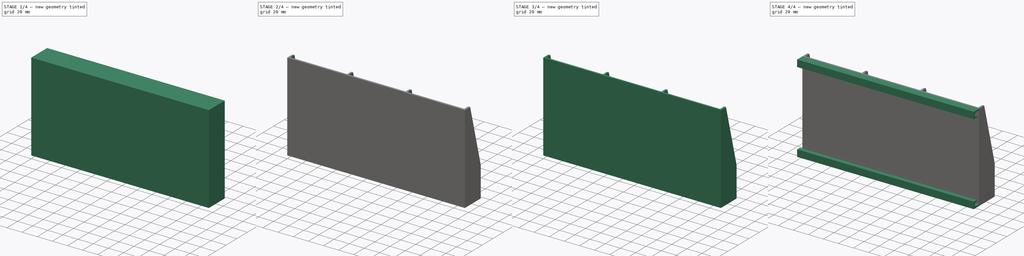
[diagram: build sequence overview — one tinted view per stage of 4, left to right]
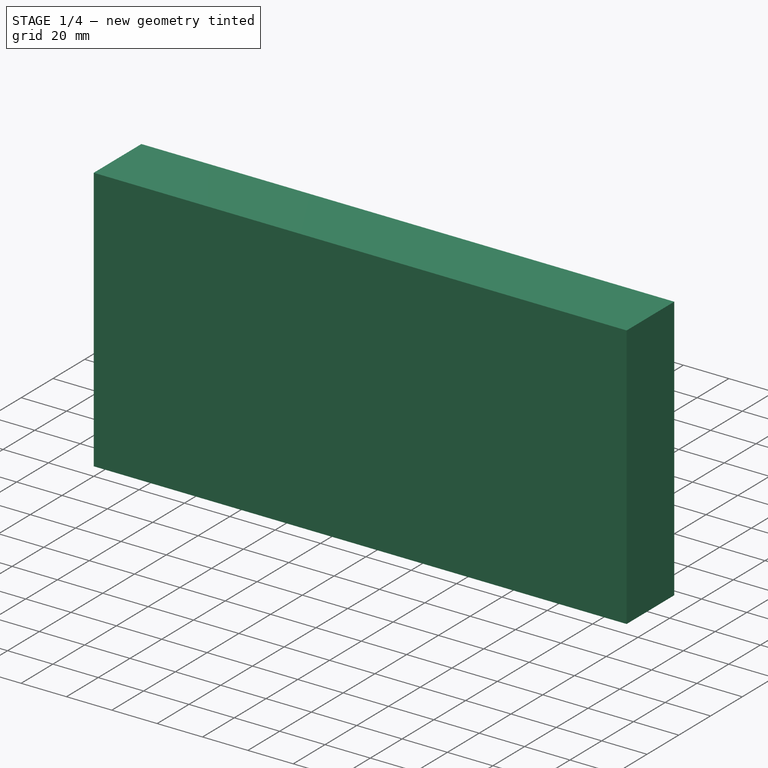
[diagram: stage 1 of 4 — iso view after this stage's code; geometry added in this stage tinted green]
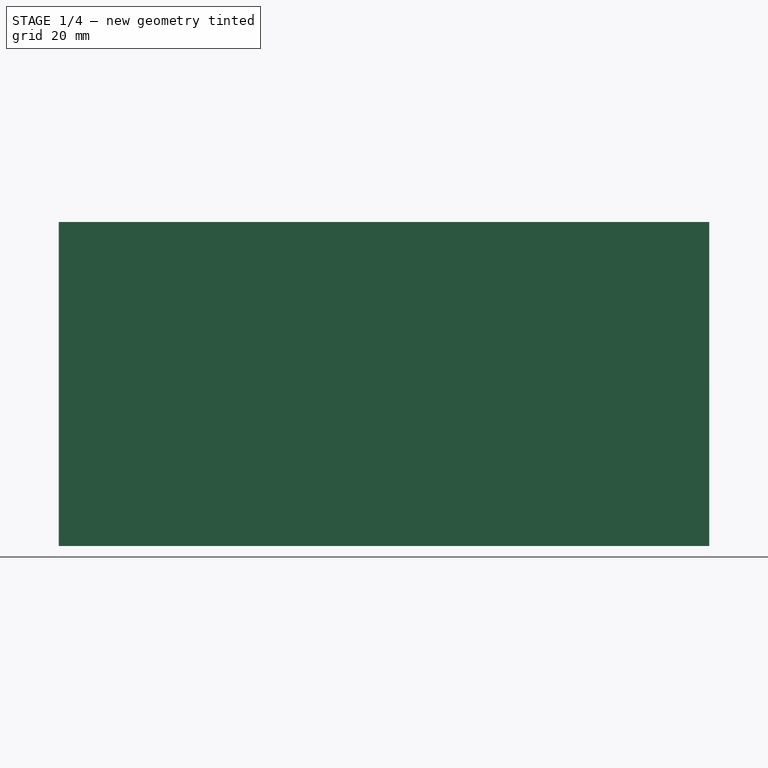
[diagram: stage 1 of 4 — front view after this stage's code; geometry added in this stage tinted green]
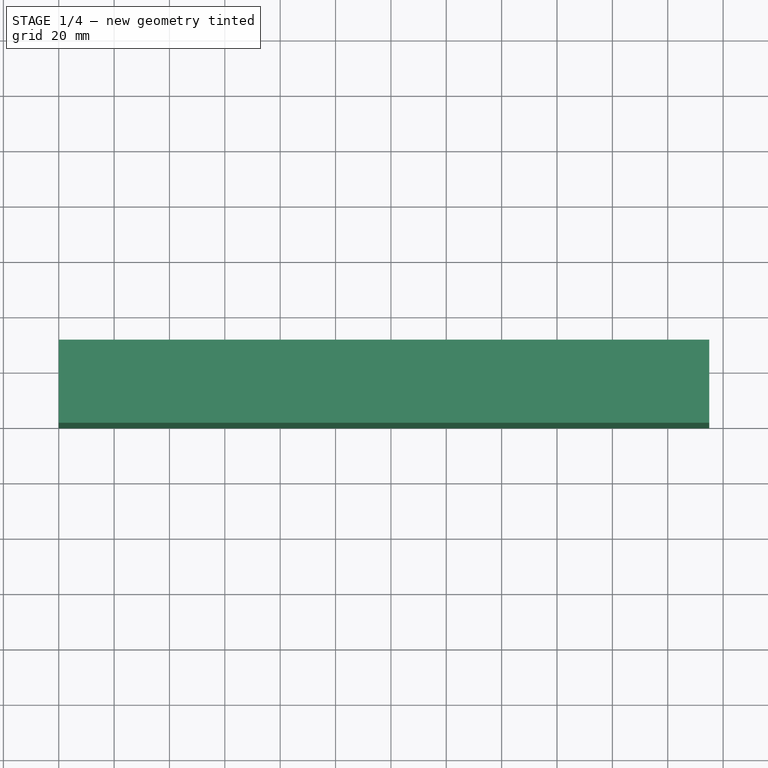
[diagram: stage 1 of 4 — top view after this stage's code; geometry added in this stage tinted green]
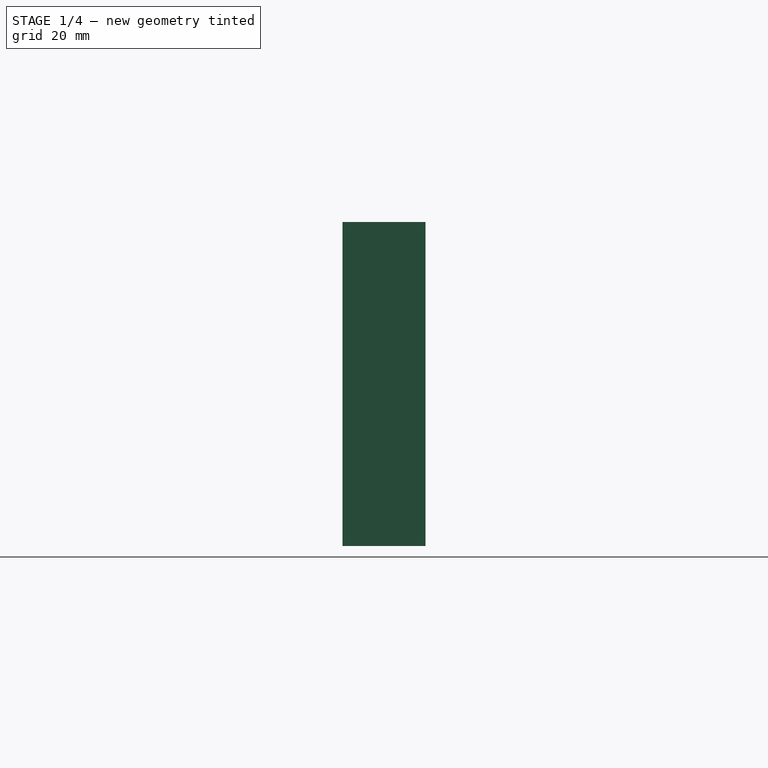
[diagram: stage 1 of 4 — right view after this stage's code; geometry added in this stage tinted green]
FCSTD DOCUMENT  (FreeCAD 0.19R)
Label: SupportEponge
License: All rights reserved
LicenseURL: http://en.wikipedia.org/wiki/All_rights_reserved
objects: Sketcher::SketchObject×5, PartDesign::Pocket×4, PartDesign::LinearPattern×2, Part::Box×1, PartDesign::FeatureBase×1, PartDesign::MultiTransform×1, PartDesign::Fillet×1, PartDesign::Pad×1, PartDesign::Body×1
note: 23 computed .brp shape members not serialized (recipe doc carries the construction recipe); baked Part::Feature solids carry a one-line shape summary decoded from their .brp

FEATURE [Part::Box] Box  label="Cube"
  AttacherType = Attacher::AttachEngine3D
  Height = 117
  Length = 235
  Width = 30
FEATURE [PartDesign::FeatureBase] BaseFeature
  BaseFeature = -> Box
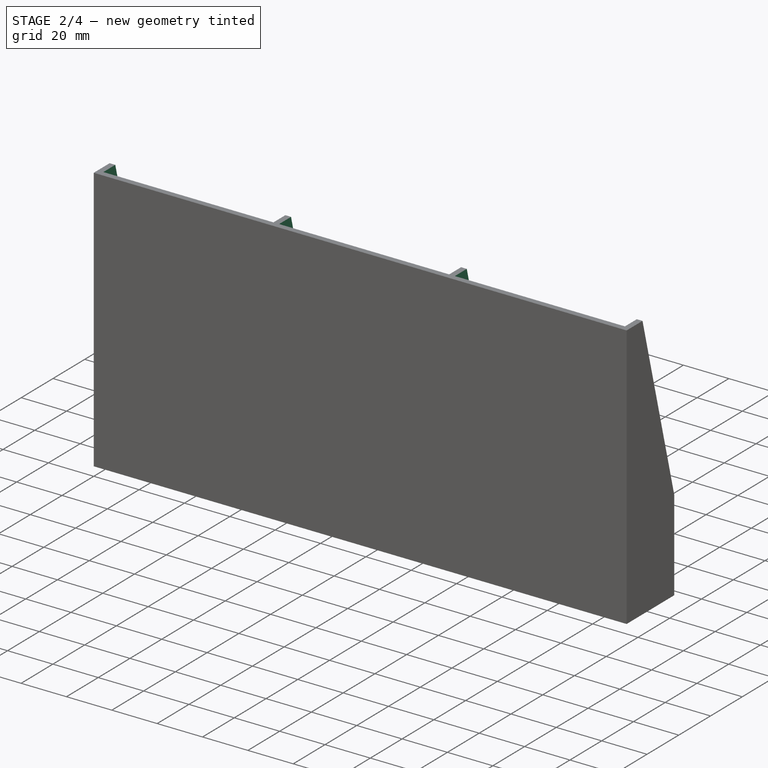
[diagram: stage 2 of 4 — iso view after this stage's code; geometry added in this stage tinted green]
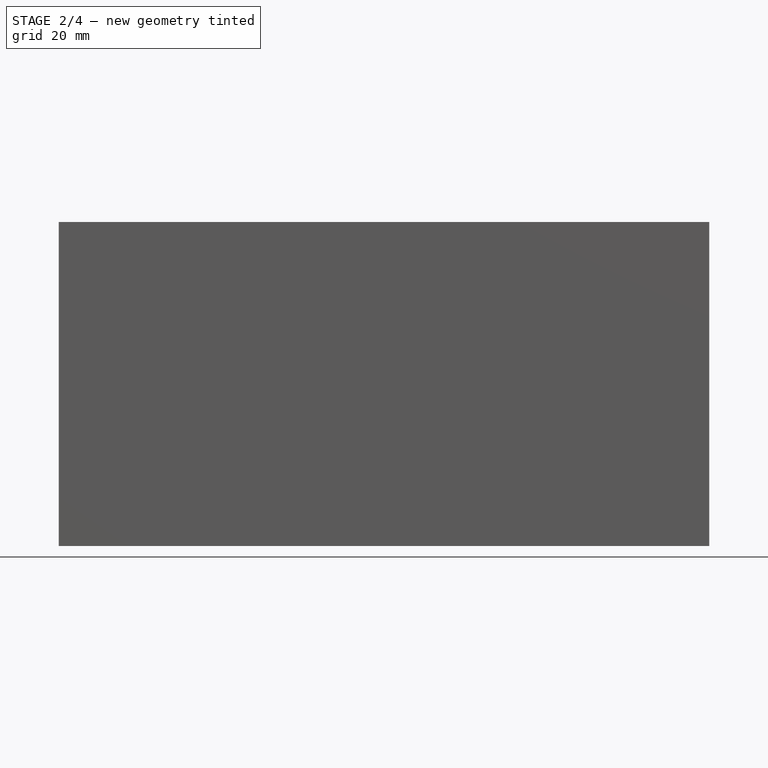
[diagram: stage 2 of 4 — front view after this stage's code; geometry added in this stage tinted green]
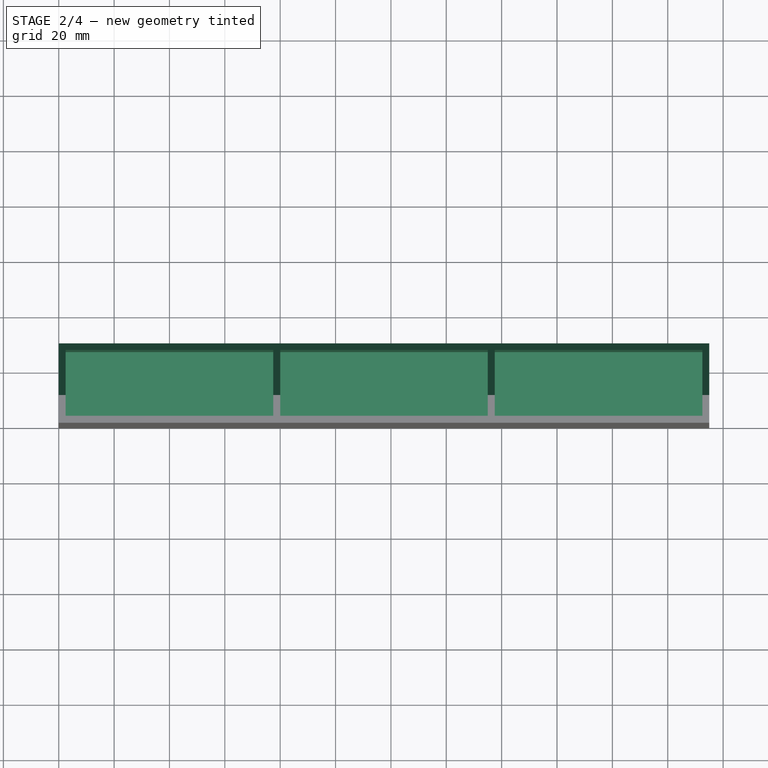
[diagram: stage 2 of 4 — top view after this stage's code; geometry added in this stage tinted green]
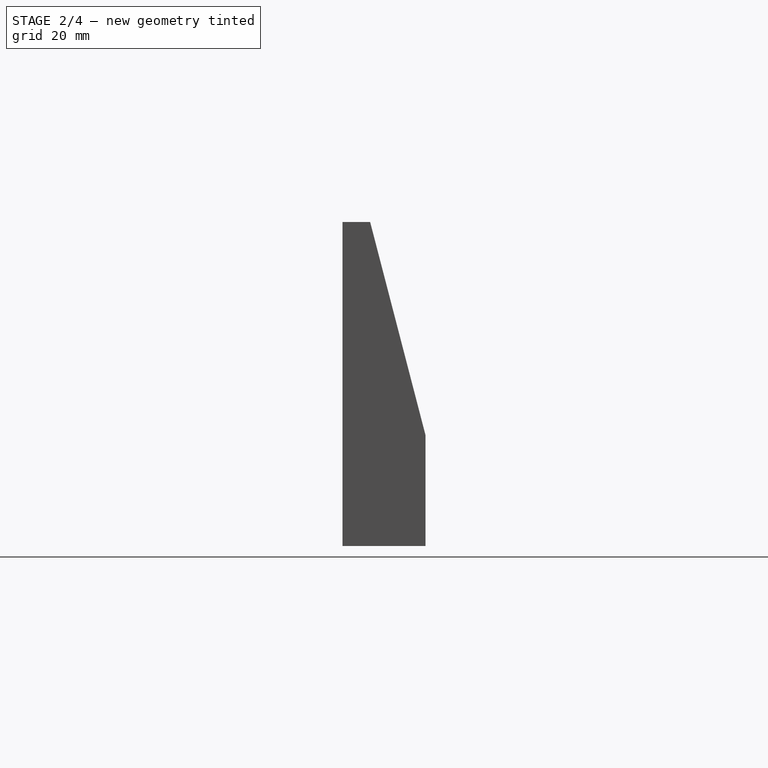
[diagram: stage 2 of 4 — right view after this stage's code; geometry added in this stage tinted green]
FEATURE [Sketcher::SketchObject] Sketch
  ExternalGeometry = -> [BaseFeature]
  FullyConstrained = true
  MapMode = 5
  Placement = pos=(0,0,117) rot=(0,0,1;0rad)
  Support = -> [BaseFeature]
  sketch-geometry (12):
    g0: LineSegment StartX=2.5 StartY=27.5 StartZ=0 EndX=77.5 EndY=27.5 EndZ=0
    g1: LineSegment StartX=77.5 StartY=27.5 StartZ=0 EndX=77.5 EndY=2.5 EndZ=0
    g2: LineSegment StartX=77.5 StartY=2.5 StartZ=0 EndX=2.5 EndY=2.5 EndZ=0
    g3: LineSegment StartX=2.5 StartY=2.5 StartZ=0 EndX=2.5 EndY=27.5 EndZ=0
    g4: LineSegment StartX=80 StartY=27.5 StartZ=0 EndX=155 EndY=27.5 EndZ=0
    g5: LineSegment StartX=155 StartY=27.5 StartZ=0 EndX=155 EndY=2.5 EndZ=0
    g6: LineSegment StartX=155 StartY=2.5 StartZ=0 EndX=80 EndY=2.5 EndZ=0
    g7: LineSegment StartX=80 StartY=2.5 StartZ=0 EndX=80 EndY=27.5 EndZ=0
    g8: LineSegment StartX=157.5 StartY=27.5 StartZ=0 EndX=232.5 EndY=27.5 EndZ=0
    g9: LineSegment StartX=232.5 StartY=27.5 StartZ=0 EndX=232.5 EndY=2.5 EndZ=0
    g10: LineSegment StartX=232.5 StartY=2.5 StartZ=0 EndX=157.5 EndY=2.5 EndZ=0
    g11: LineSegment StartX=157.5 StartY=2.5 StartZ=0 EndX=157.5 EndY=27.5 EndZ=0
  constraints (36):
    c: Coincident(g0,g1)
    c: Coincident(g1,g2)
    c: Coincident(g2,g3)
    c: Coincident(g3,g0)
    c: Horizontal(g0)
    c: Horizontal(g2)
    c: Vertical(g1)
    c: Vertical(g3)
    c: DistanceX(g-6,g0) = 2.5
    c: DistanceY(g-1,g2) = 2.5
    c: DistanceY(g0,g-6) = 2.5
    c: DistanceX(g0,g0) = 75
    c: Coincident(g4,g5)
    c: Coincident(g5,g6)
    c: Coincident(g6,g7)
    c: Coincident(g7,g4)
    c: Horizontal(g4)
    c: Horizontal(g6)
    c: Vertical(g5)
    c: Vertical(g7)
    c: Coincident(g8,g9)
    c: Coincident(g9,g10)
    c: Coincident(g10,g11)
    c: Coincident(g11,g8)
    c: Horizontal(g8)
    c: Horizontal(g10)
    c: Vertical(g9)
    c: Vertical(g11)
    c: Equal(g0,g4)
    c: Equal(g4,g8)
    c: Equal(g7,g11)
    c: Equal(g11,g1)
    c: DistanceX(g0,g4) = 2.5
    c: DistanceX(g4,g8) = 2.5
    c: DistanceY(g4,g-6) = 2.5
    c: DistanceY(g8,g-6) = 2.5
FEATURE [PartDesign::Pocket] Pocket
  BaseFeature = -> BaseFeature
  Length = 115.5
  Length2 = 100
  Profile = -> Sketch
  Type = 0
FEATURE [Sketcher::SketchObject] Sketch001
  ExternalGeometry = -> [Pocket]
  FullyConstrained = false
  MapMode = 5
  Placement = pos=(235,0,0) rot=(0.57735,0.57735,0.57735;2.0944rad)
  Support = -> [Pocket]
  sketch-geometry (3):
    g0: LineSegment StartX=10 StartY=117 StartZ=0 EndX=30 EndY=40 EndZ=0
    g1: LineSegment StartX=10 StartY=117 StartZ=0 EndX=40 EndY=120 EndZ=0
    g2: LineSegment StartX=40 StartY=120 StartZ=0 EndX=30 EndY=40 EndZ=0
  constraints (7):
    c: PointOnObject(g0,g-3)
    c: PointOnObject(g0,g-4)
    c: DistanceY(g-4,g0) = 40
    c: DistanceX(g-3,g0) = 10
    c: Coincident(g2,g1)
    c: Coincident(g1,g0)
    c: Coincident(g0,g2)
FEATURE [PartDesign::Pocket] Pocket001
  BaseFeature = -> Pocket
  Length = 300
  Length2 = 100
  Profile = -> Sketch001
  Type = 0
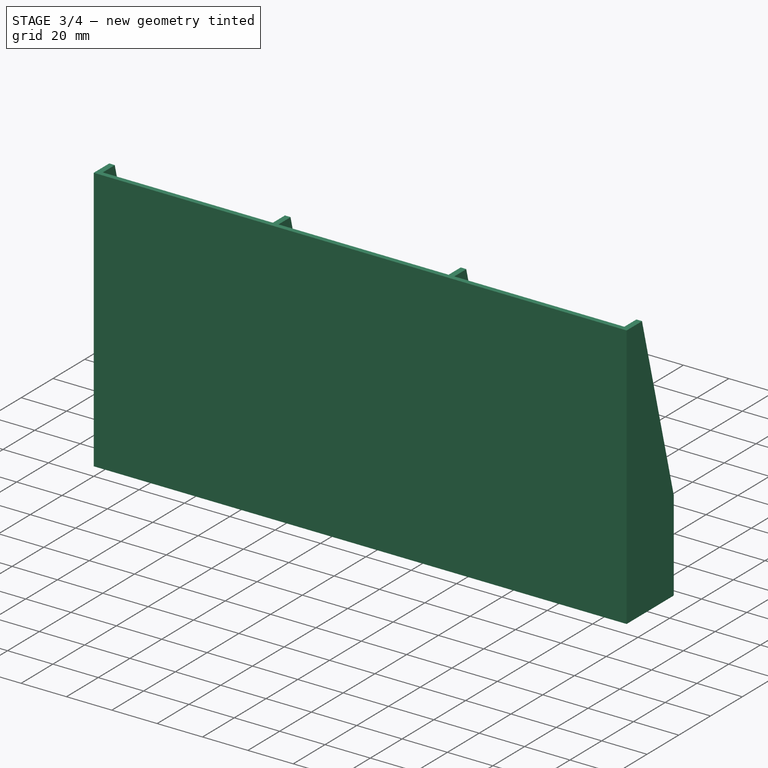
[diagram: stage 3 of 4 — iso view after this stage's code; geometry added in this stage tinted green]
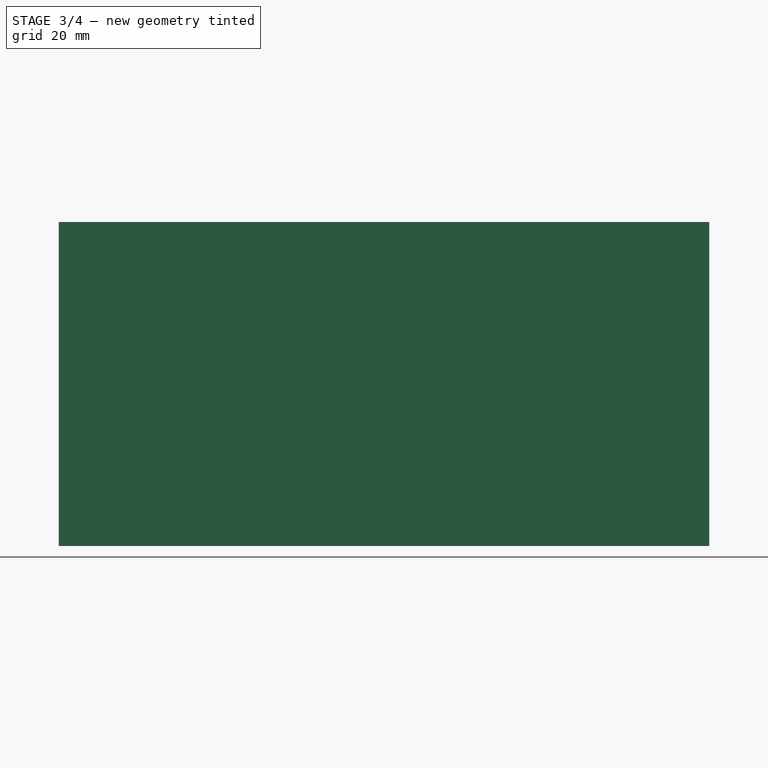
[diagram: stage 3 of 4 — front view after this stage's code; geometry added in this stage tinted green]
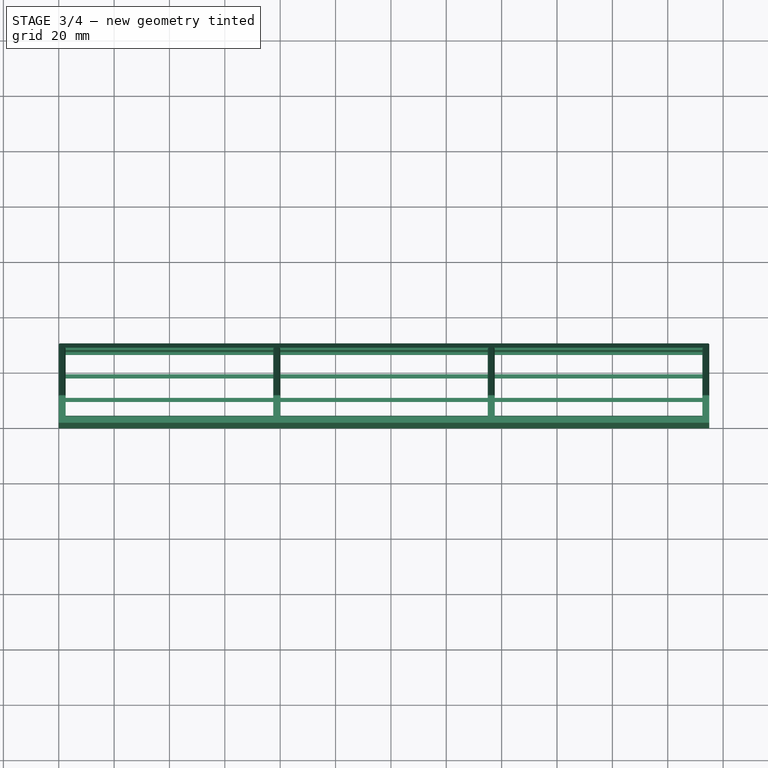
[diagram: stage 3 of 4 — top view after this stage's code; geometry added in this stage tinted green]
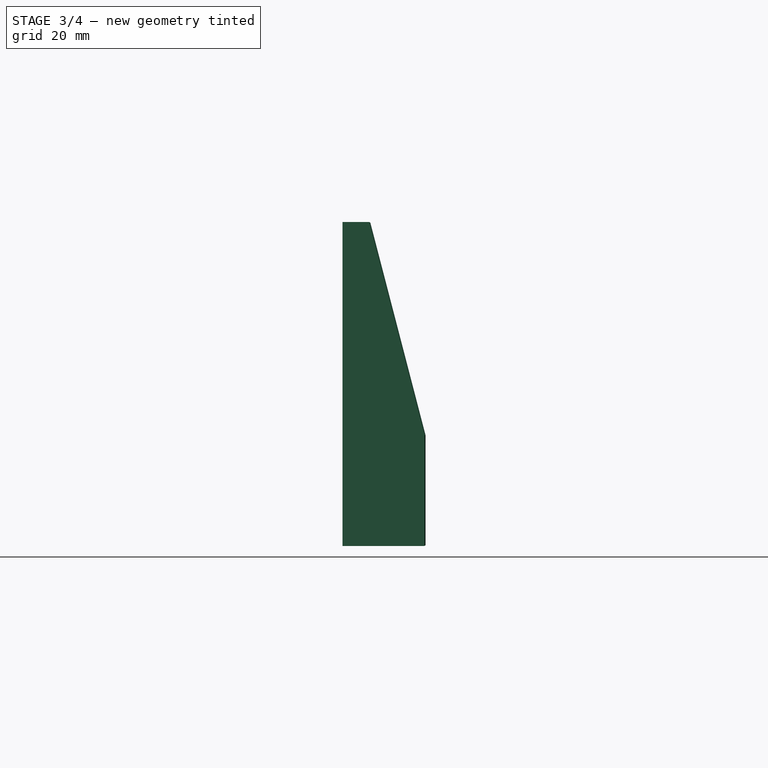
[diagram: stage 3 of 4 — right view after this stage's code; geometry added in this stage tinted green]
FEATURE [Sketcher::SketchObject] Sketch002
  FullyConstrained = true
  MapMode = 5
  Placement = pos=(0,0,0) rot=(1,0,0;3.14159rad)
  Support = -> [Pocket001]
  sketch-geometry (4):
    g0: LineSegment StartX=2.5 StartY=-2.5 StartZ=0 EndX=77.5 EndY=-2.5 EndZ=0
    g1: LineSegment StartX=77.5 StartY=-2.5 StartZ=0 EndX=77.5 EndY=-9.5 EndZ=0
    g2: LineSegment StartX=77.5 StartY=-9.5 StartZ=0 EndX=2.5 EndY=-9.5 EndZ=0
    g3: LineSegment StartX=2.5 StartY=-9.5 StartZ=0 EndX=2.5 EndY=-2.5 EndZ=0
  constraints (12):
    c: Coincident(g0,g1)
    c: Coincident(g1,g2)
    c: Coincident(g2,g3)
    c: Coincident(g3,g0)
    c: Horizontal(g0)
    c: Horizontal(g2)
    c: Vertical(g1)
    c: Vertical(g3)
    c: DistanceY(g0,g-1) = 2.5
    c: DistanceX(g0,g0) = 75
    c: DistanceY(g1,g1) = 7
    c: DistanceX(g-1,g0) = 2.5
FEATURE [PartDesign::Pocket] Pocket002
  BaseFeature = -> Pocket001
  Length = 5
  Length2 = 100
  Profile = -> Sketch002
  Type = 0
FEATURE [PartDesign::LinearPattern] LinearPattern001
  Direction = -> Sketch002 [H_Axis]
  Length = 155
  Occurrences = 3
FEATURE [PartDesign::LinearPattern] LinearPattern002
  Direction = -> Sketch002 [V_Axis]
  Length = 17
  Occurrences = 3
  Reversed = true
FEATURE [PartDesign::MultiTransform] MultiTransform
  BaseFeature = -> Pocket002
  Originals = -> [Pocket002]
  Transformations = -> [LinearPattern001,LinearPattern002]
FEATURE [PartDesign::Fillet] Fillet
  Base = -> MultiTransform [Edge22,Edge33,Edge3,Edge2,Edge23,Edge24,Edge25,Edge26,Edge27,Edge28,Edge29,Edge30,Edge31,Edge21,Edge32,Edge6,Edge10,Edge14,Edge18,Edge16,Edge8,Edge12]
  BaseFeature = -> MultiTransform
  Radius = 0.5
  SupportTransform = false
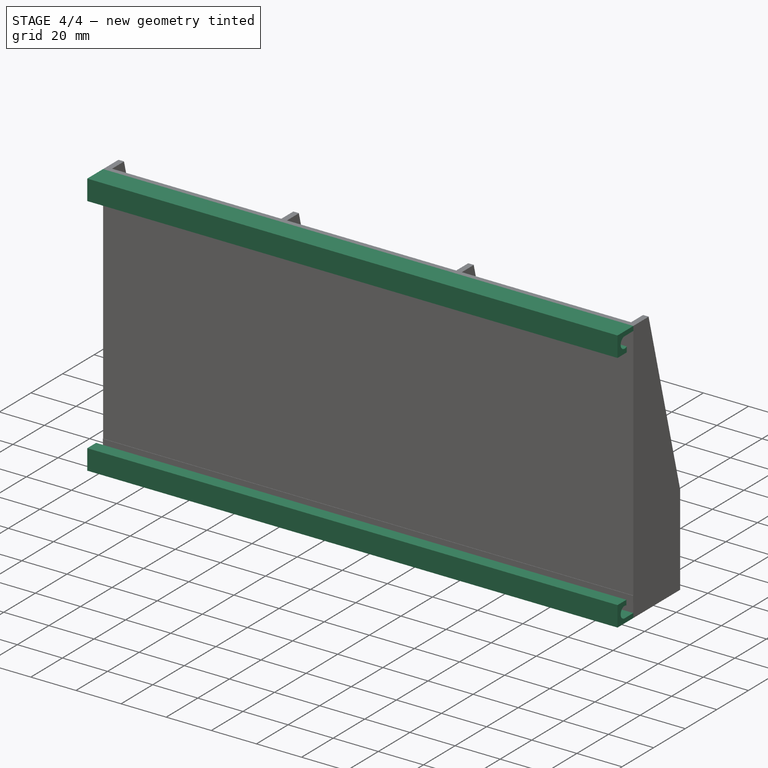
[diagram: stage 4 of 4 — iso view after this stage's code; geometry added in this stage tinted green]
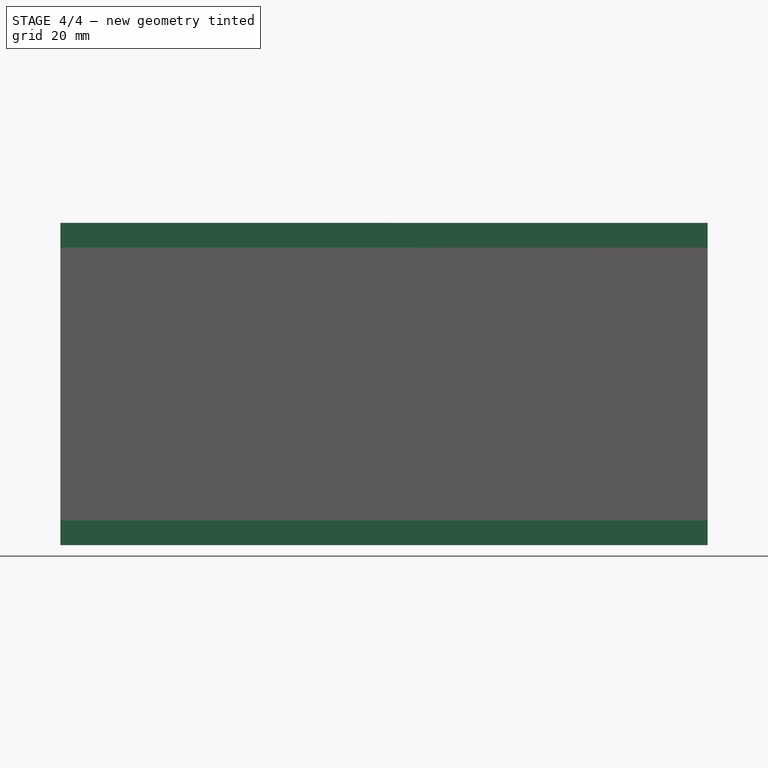
[diagram: stage 4 of 4 — front view after this stage's code; geometry added in this stage tinted green]
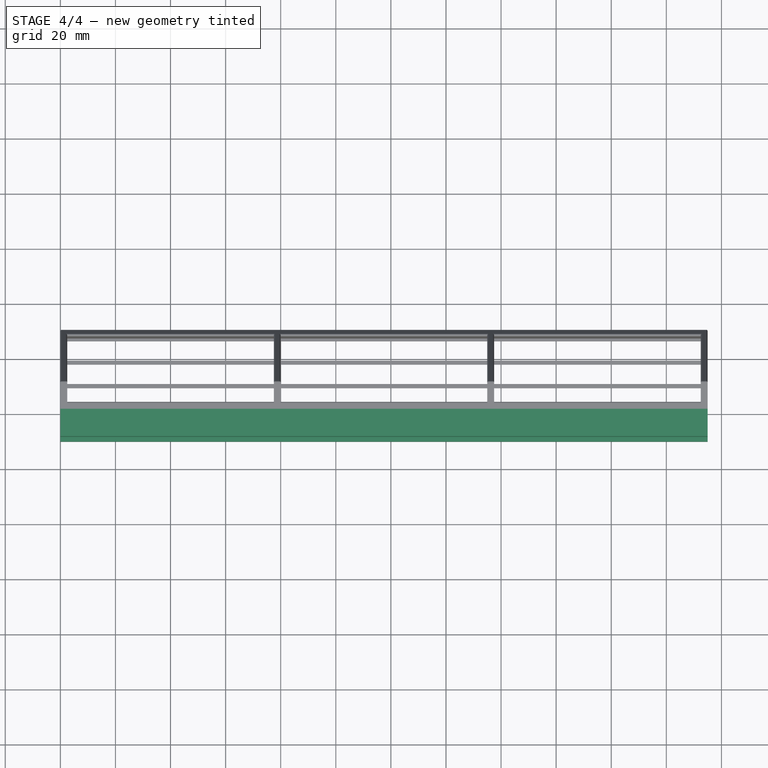
[diagram: stage 4 of 4 — top view after this stage's code; geometry added in this stage tinted green]
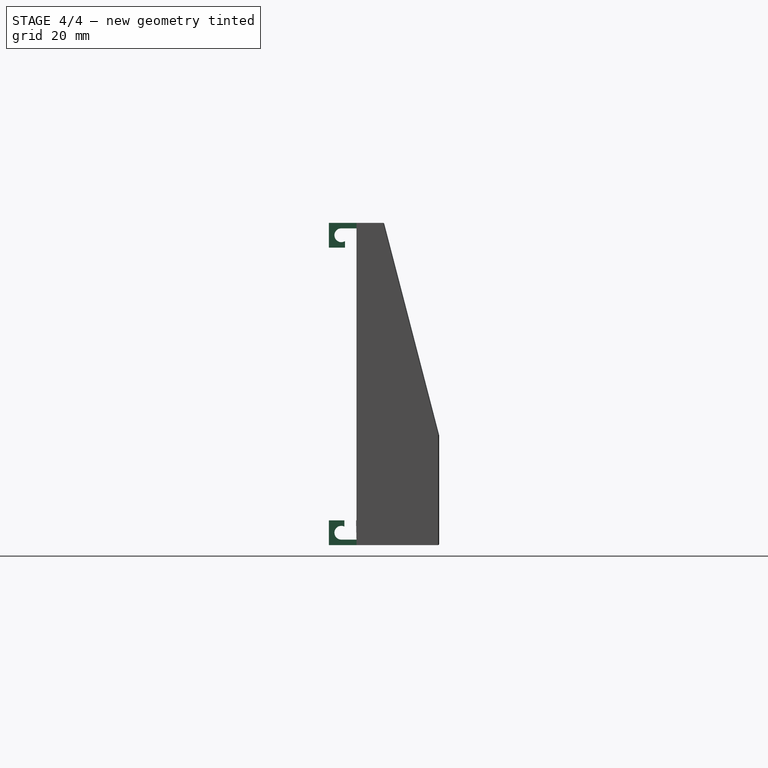
[diagram: stage 4 of 4 — right view after this stage's code; geometry added in this stage tinted green]
FEATURE [Sketcher::SketchObject] Sketch003
  ExternalGeometry = -> [Fillet]
  FullyConstrained = false
  MapMode = 5
  Placement = pos=(0,0,0) rot=(1,0,0;1.5708rad)
  Support = -> [Fillet]
  sketch-geometry (8):
    g0: LineSegment StartX=235 StartY=108 StartZ=0 EndX=0 EndY=108 EndZ=0
    g1: LineSegment StartX=0 StartY=108 StartZ=0 EndX=0 EndY=117 EndZ=0
    g2: LineSegment StartX=0 StartY=117 StartZ=0 EndX=235 EndY=117 EndZ=0
    g3: LineSegment StartX=235 StartY=117 StartZ=0 EndX=235 EndY=108 EndZ=0
    g4: LineSegment StartX=0 StartY=9 StartZ=0 EndX=235 EndY=9 EndZ=0
    g5: LineSegment StartX=235 StartY=9 StartZ=0 EndX=235 EndY=0 EndZ=0
    g6: LineSegment StartX=235 StartY=0 StartZ=0 EndX=0 EndY=0 EndZ=0
    g7: LineSegment StartX=0 StartY=0 StartZ=0 EndX=0 EndY=9 EndZ=0
  constraints (19):
    c: Coincident(g0,g1)
    c: Coincident(g1,g2)
    c: Coincident(g2,g3)
    c: Coincident(g3,g0)
    c: Horizontal(g0)
    c: Vertical(g3)
    c: DistanceY(g3,g3) = 9
    c: Coincident(g-6,g1)
    c: Coincident(g2,g-4)
    c: Coincident(g4,g5)
    c: Coincident(g5,g6)
    c: Coincident(g6,g7)
    c: Coincident(g7,g4)
    c: Horizontal(g4)
    c: Vertical(g5)
    c: Vertical(g7)
    c: DistanceY(g5,g5) = 9
    c: Coincident(g-1,g6)
    c: Coincident(g-5,g5)
FEATURE [PartDesign::Pad] Pad
  BaseFeature = -> Fillet
  Direction = (1,1,1)
  Length = 10
  Length2 = 100
  Profile = -> Sketch003
  Type = 0
FEATURE [Sketcher::SketchObject] Sketch004
  ExternalGeometry = -> [Pad]
  FullyConstrained = false
  MapMode = 5
  Placement = pos=(235,0,0) rot=(0.57735,0.57735,0.57735;2.0944rad)
  Support = -> [Pad]
  sketch-geometry (11):
    g0: ArcOfCircle CenterX=-5.5 CenterY=112.5 CenterZ=0 NormalX=0 NormalY=0 NormalZ=1 AngleXU=0 Radius=2.5 StartAngle=1.56219 EndAngle=5.27769
    g1: ArcOfCircle CenterX=-5.5 CenterY=4.5 CenterZ=0 NormalX=0 NormalY=0 NormalZ=1 AngleXU=0 Radius=2.5 StartAngle=1.11569 EndAngle=4.71239
    g2: LineSegment StartX=-5.5 StartY=2 StartZ=0 EndX=0 EndY=2 EndZ=0
    g3: LineSegment StartX=0 StartY=2 StartZ=0 EndX=-0.240678 EndY=13.9189 EndZ=0
    g4: LineSegment StartX=-0.240678 StartY=13.9189 StartZ=0 EndX=-4.4011 EndY=13.8609 EndZ=0
    g5: LineSegment StartX=-4.4011 StartY=13.8609 StartZ=0 EndX=-4.4011 EndY=6.74553 EndZ=0
    g6: LineSegment StartX=-5.5 StartY=130 StartZ=0 EndX=-5.5 EndY=-3.82932 EndZ=0
    g7: LineSegment StartX=-5.47848 StartY=115 StartZ=0 EndX=0 EndY=115 EndZ=0
    g8: LineSegment StartX=0 StartY=115 StartZ=0 EndX=0 EndY=105.76 EndZ=0
    g9: LineSegment StartX=0 StartY=105.76 StartZ=0 EndX=-4.16083 EndY=105.76 EndZ=0
    g10: LineSegment StartX=-4.16083 StartY=105.76 StartZ=0 EndX=-4.16083 EndY=110.389 EndZ=0
  constraints (27):
    c: Radius(g0) = 2.5
    c: DistanceX(g-5,g0) = 4.5
    c: DistanceY(g0,g-5) = 4.5
    c: Radius(g1) = 2.5
    c: DistanceY(g-7,g1) = 4.5
    c: DistanceX(g-7,g1) = 4.5
    c: Coincident(g2,g3)
    c: Coincident(g3,g4)
    c: Coincident(g4,g5)
    c: Coincident(g1,g5)
    c: Coincident(g1,g2)
    c: Vertical(g5)
    c: Horizontal(g2)
    c: PointOnObject(g1,g6)
    c: PointOnObject(g1,g6)
    c: Coincident(g7,g8)
    c: Coincident(g8,g9)
    c: Coincident(g9,g10)
    c: Coincident(g0,g10)
    c: Horizontal(g7)
    c: Coincident(g7,g0)
    c: Vertical(g10)
    c: Horizontal(g9)
    c: Equal(g9,g4)
    c: Vertical(g6)
    c: Vertical(g8)
    c: PointOnObject(g8,g-2)
FEATURE [PartDesign::Pocket] Pocket003
  BaseFeature = -> Pad
  Length = 5
  Length2 = 100
  Profile = -> Sketch004
  Type = 1
FEATURE [PartDesign::Body] Body
  BaseFeature = -> Box
  Group = -> [BaseFeature,Sketch,Pocket,Sketch001,Pocket001,Sketch002,Pocket002,MultiTransform,LinearPattern001,LinearPattern002,Fillet,Sketch003,Pad,Sketch004,Pocket003]
  Origin = -> Origin
  Tip = -> Pocket003
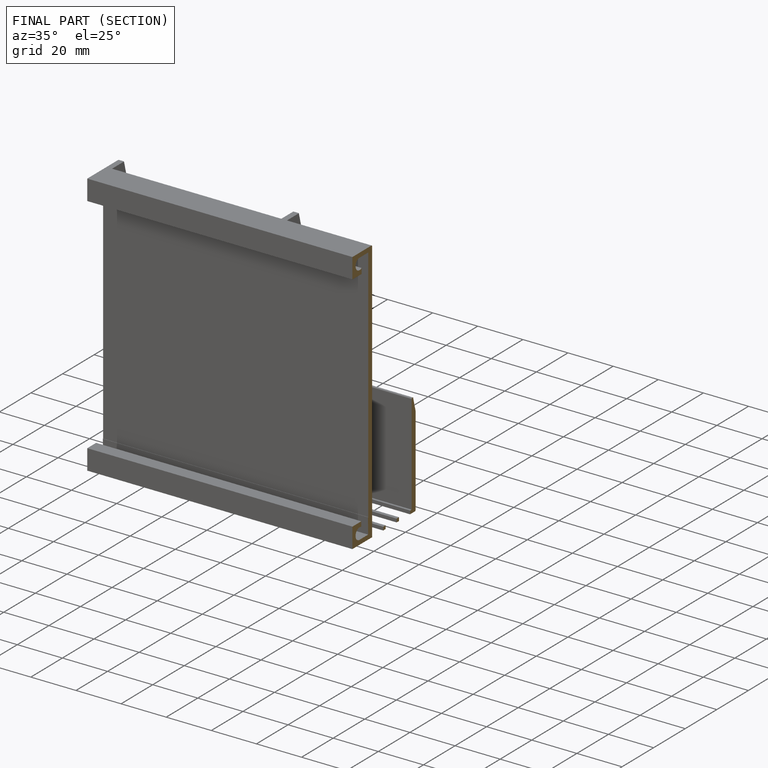
[diagram: finished part — half-section view (interior)]
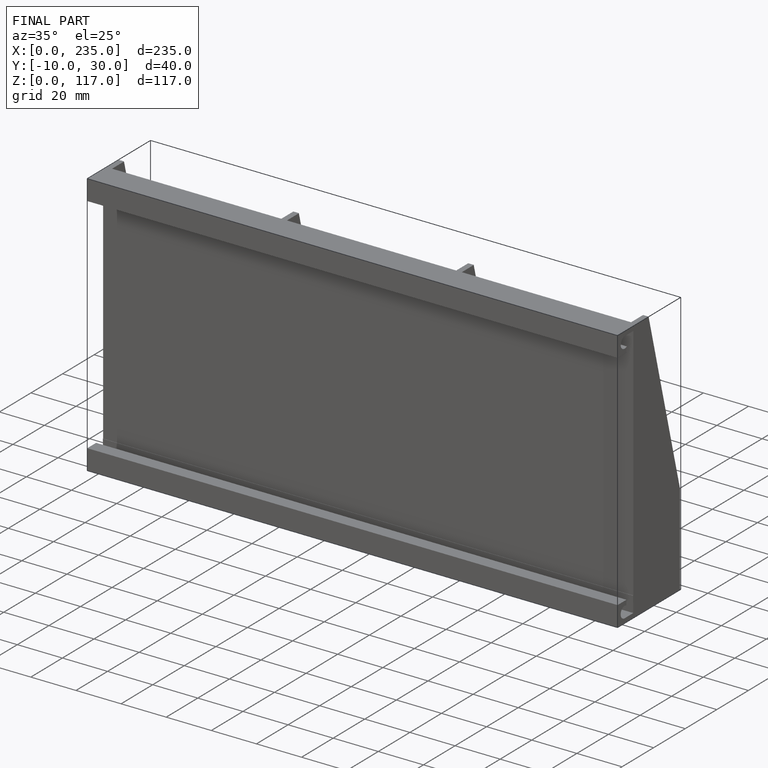
[diagram: finished part — iso view with bounding-box wireframe]
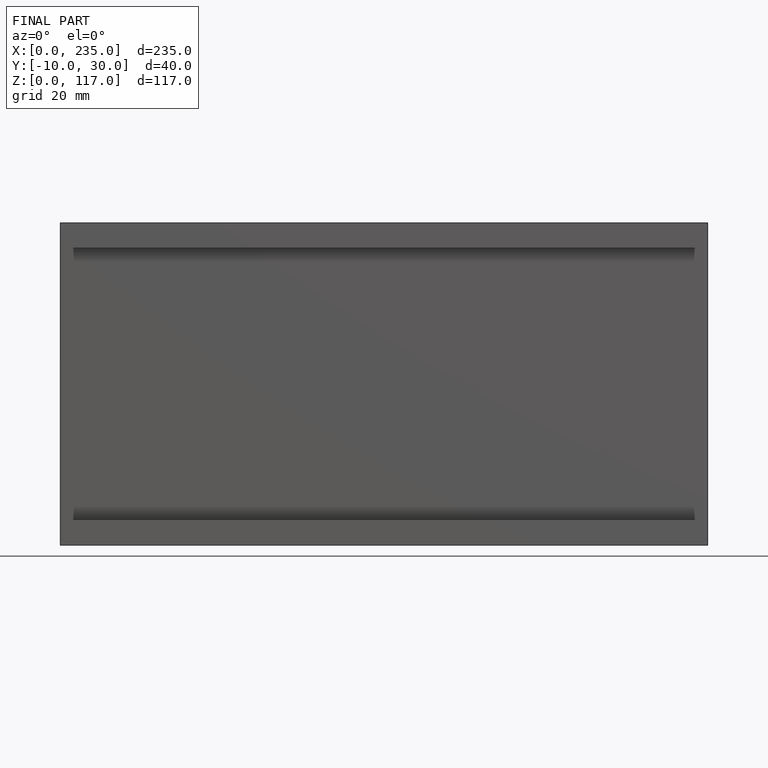
[diagram: finished part — front view with bounding-box wireframe]
